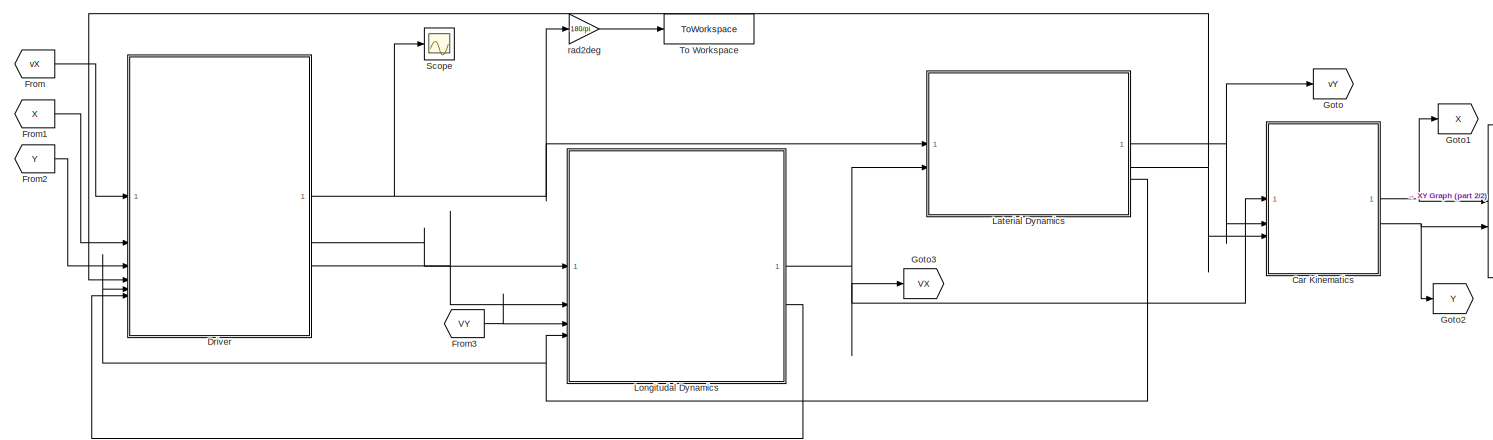
[diagram: root canvas - part 1/2, most of the canvas]
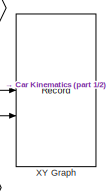
[diagram: root canvas - part 2/2, middle right region]
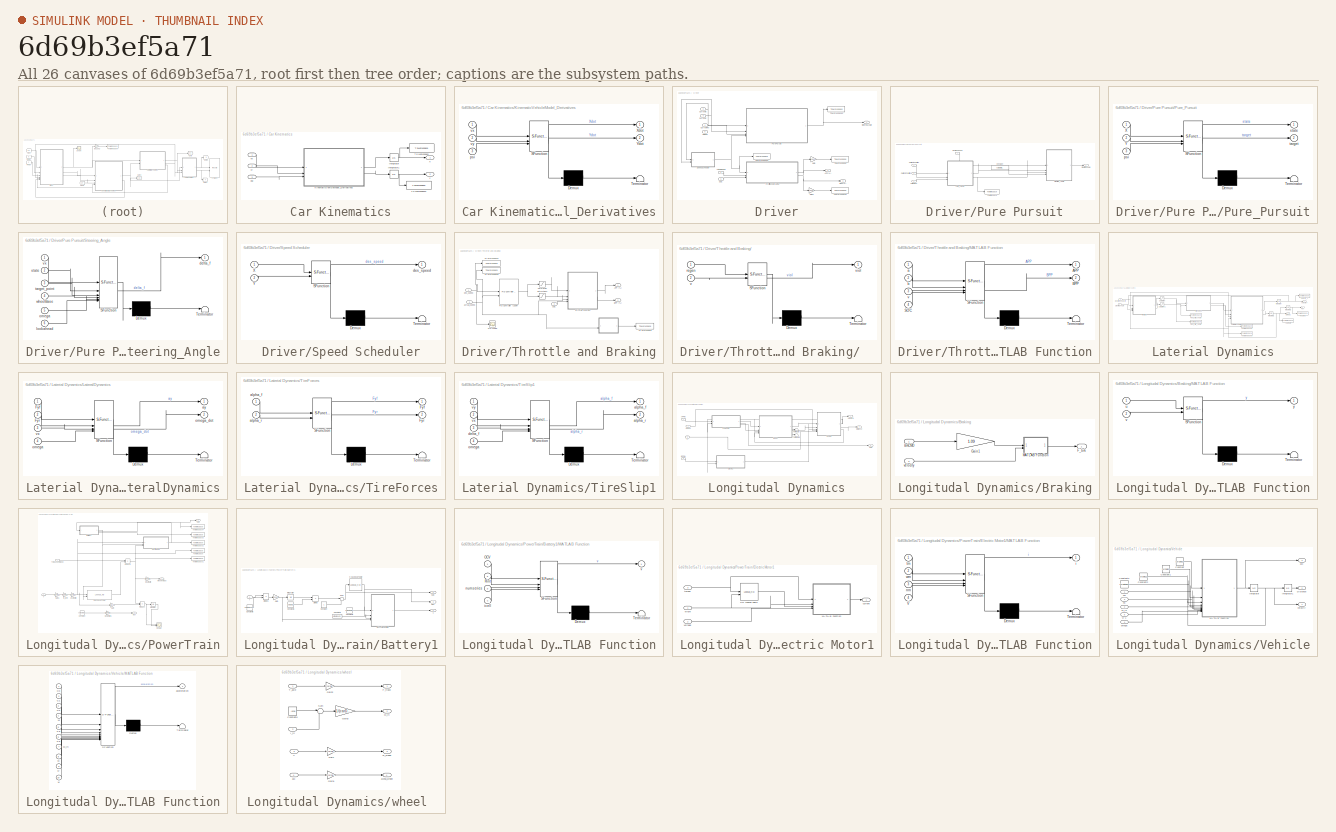
[diagram: thumbnail index - all 26 canvases of the model, root first then tree order]
MODEL slx_6d69b3ef5a71
KIND model
CONFIG AbsTol = auto
CONFIG EnableMultiTasking = off
CONFIG FixedStep = auto
CONFIG MaxStep = auto
CONFIG MinStep = auto
CONFIG RelTol = 1e-3
CONFIG SampleTimeConstraint = Unconstrained
CONFIG SolverName = VariableStepAuto
CONFIG StartTime = 0.0
CONFIG StopTime = 10.0
BLOCK [SubSystem] Car Kinematics
BLOCK [Integrator] Car Kinematics/Integrator
  InitialCondition = carData.init.X0
BLOCK [Integrator] Car Kinematics/Integrator1
  InitialCondition = carData.init.Y0
BLOCK [SubSystem] Car Kinematics/KinematicVehicleModel_Derivatives
  ErrorFcn = Stateflow.Translate.translate
  PermitHierarchicalResolution = ExplicitOnly
  SFBlockType = MATLAB Function
  TreatAsAtomicUnit = on
BLOCK [Demux] Car Kinematics/KinematicVehicleModel_Derivatives/ Demux 
  Outputs = 1
BLOCK [S-Function] Car Kinematics/KinematicVehicleModel_Derivatives/ SFunction 
  EnableBusSupport = on
  FunctionName = sf_sfun
  PortCounts = [3 3]
  SFcnIsStateOwnerBlock = off
  SFunctionDeploymentMode = off
  Tag = Stateflow S-Function 3
BLOCK [Terminator] Car Kinematics/KinematicVehicleModel_Derivatives/ Terminator 
BLOCK [Outport] Car Kinematics/KinematicVehicleModel_Derivatives/Xdot
BLOCK [Outport] Car Kinematics/KinematicVehicleModel_Derivatives/Ydot
  Port = 2
BLOCK [Inport] Car Kinematics/KinematicVehicleModel_Derivatives/psi
  Port = 3
BLOCK [Inport] Car Kinematics/KinematicVehicleModel_Derivatives/vx
BLOCK [Inport] Car Kinematics/KinematicVehicleModel_Derivatives/vy
  Port = 2
BLOCK [ToWorkspace] Car Kinematics/To Workspace
  FixptAsFi = on
  MaxDataPoints = inf
  SampleTime = -1
  SaveFormat = Timeseries
  VariableName = X
BLOCK [ToWorkspace] Car Kinematics/To Workspace1
  FixptAsFi = on
  MaxDataPoints = inf
  SampleTime = -1
  SaveFormat = Timeseries
  VariableName = Y
BLOCK [Outport] Car Kinematics/X
BLOCK [Outport] Car Kinematics/Y
  Port = 2
BLOCK [Inport] Car Kinematics/psi
  Port = 3
BLOCK [Inport] Car Kinematics/vx
BLOCK [Inport] Car Kinematics/vy
  Port = 2
BLOCK [SubSystem] Driver
BLOCK [Outport] Driver/APP (%)
  Port = 2
BLOCK [Inport] Driver/Actual Speed
BLOCK [Outport] Driver/BPP (%)
  Port = 3
BLOCK [Inport] Driver/Current Psi
  Port = 4
BLOCK [Inport] Driver/Current X
  Port = 2
BLOCK [Inport] Driver/Current Y
  Port = 3
BLOCK [Gain] Driver/Gain
  Gain = 1/100
BLOCK [Gain] Driver/Gain1
  Gain = 1/100
BLOCK [Inport] Driver/Omega
  Port = 5
BLOCK [SubSystem] Driver/Pure Pursuit
BLOCK [Constant] Driver/Pure Pursuit/Constant
  Value = carData.lf + carData.lr
BLOCK [Inport] Driver/Pure Pursuit/Current PSI
  Port = 3
BLOCK [Inport] Driver/Pure Pursuit/Current X Position
BLOCK [Inport] Driver/Pure Pursuit/Current Y Position
  Port = 2
BLOCK [Inport] Driver/Pure Pursuit/Desired Speed
  Port = 4
BLOCK [SubSystem] Driver/Pure Pursuit/Pure_Pursuit
  ErrorFcn = Stateflow.Translate.translate
  PermitHierarchicalResolution = ExplicitOnly
  SFBlockType = MATLAB Function
  TreatAsAtomicUnit = on
BLOCK [Demux] Driver/Pure Pursuit/Pure_Pursuit/ Demux 
  Outputs = 1
BLOCK [S-Function] Driver/Pure Pursuit/Pure_Pursuit/ SFunction 
  EnableBusSupport = on
  FunctionName = sf_sfun
  PortCounts = [3 3]
  SFcnIsStateOwnerBlock = off
  SFunctionDeploymentMode = off
  Tag = Stateflow S-Function 10
BLOCK [Terminator] Driver/Pure Pursuit/Pure_Pursuit/ Terminator 
BLOCK [Inport] Driver/Pure Pursuit/Pure_Pursuit/X
BLOCK [Inport] Driver/Pure Pursuit/Pure_Pursuit/Y
  Port = 2
BLOCK [Inport] Driver/Pure Pursuit/Pure_Pursuit/psi
  Port = 3
BLOCK [Outport] Driver/Pure Pursuit/Pure_Pursuit/state
BLOCK [Outport] Driver/Pure Pursuit/Pure_Pursuit/target
  Port = 2
BLOCK [Outport] Driver/Pure Pursuit/Steering Angle
BLOCK [SubSystem] Driver/Pure Pursuit/Steering_Angle
  ErrorFcn = Stateflow.Translate.translate
  PermitHierarchicalResolution = ExplicitOnly
  SFBlockType = MATLAB Function
  TreatAsAtomicUnit = on
BLOCK [Demux] Driver/Pure Pursuit/Steering_Angle/ Demux 
  Outputs = 1
BLOCK [S-Function] Driver/Pure Pursuit/Steering_Angle/ SFunction 
  EnableBusSupport = on
  FunctionName = sf_sfun
  PortCounts = [6 2]
  SFcnIsStateOwnerBlock = off
  SFunctionDeploymentMode = off
  Tag = Stateflow S-Function 11
BLOCK [Terminator] Driver/Pure Pursuit/Steering_Angle/ Terminator 
BLOCK [Outport] Driver/Pure Pursuit/Steering_Angle/delta_f
BLOCK [Inport] Driver/Pure Pursuit/Steering_Angle/lookahead
  Port = 6
BLOCK [Inport] Driver/Pure Pursuit/Steering_Angle/omega
  Port = 5
BLOCK [Inport] Driver/Pure Pursuit/Steering_Angle/state
  Port = 2
BLOCK [Inport] Driver/Pure Pursuit/Steering_Angle/target_point
  Port = 3
BLOCK [Inport] Driver/Pure Pursuit/Steering_Angle/vx
BLOCK [Inport] Driver/Pure Pursuit/Steering_Angle/wheelBase
  Port = 4
BLOCK [ToWorkspace] Driver/Pure Pursuit/To Workspace
  FixptAsFi = on
  MaxDataPoints = inf
  SampleTime = -1
  SaveFormat = Timeseries
  VariableName = ld_pt
BLOCK [Inport] Driver/SOC
  Port = 6
BLOCK [SubSystem] Driver/Speed Scheduler
  ErrorFcn = Stateflow.Translate.translate
  PermitHierarchicalResolution = ExplicitOnly
  SFBlockType = MATLAB Function
  TreatAsAtomicUnit = on
BLOCK [Demux] Driver/Speed Scheduler/ Demux 
  Outputs = 1
BLOCK [S-Function] Driver/Speed Scheduler/ SFunction 
  EnableBusSupport = on
  FunctionName = sf_sfun
  PortCounts = [2 2]
  SFcnIsStateOwnerBlock = off
  SFunctionDeploymentMode = off
  Tag = Stateflow S-Function 9
BLOCK [Terminator] Driver/Speed Scheduler/ Terminator 
BLOCK [Inport] Driver/Speed Scheduler/X
BLOCK [Inport] Driver/Speed Scheduler/Y
  Port = 2
BLOCK [Outport] Driver/Speed Scheduler/des_speed
BLOCK [Outport] Driver/Steering Angle
BLOCK [SubSystem] Driver/Throttle and Braking
BLOCK [SubSystem] Driver/Throttle and Braking/  
  ErrorFcn = Stateflow.Translate.translate
  PermitHierarchicalResolution = ExplicitOnly
  SFBlockType = MATLAB Function
  TreatAsAtomicUnit = on
BLOCK [Demux] Driver/Throttle and Braking/  / Demux 
  Outputs = 1
BLOCK [S-Function] Driver/Throttle and Braking/  / SFunction 
  EnableBusSupport = on
  FunctionName = sf_sfun
  PortCounts = [2 2]
  SFcnIsStateOwnerBlock = off
  SFunctionDeploymentMode = off
  Tag = Stateflow S-Function 7
BLOCK [Terminator] Driver/Throttle and Braking/  / Terminator 
BLOCK [Inport] Driver/Throttle and Braking/  /regen
BLOCK [Inport] Driver/Throttle and Braking/  /v
  Port = 2
BLOCK [Outport] Driver/Throttle and Braking/  /viol
BLOCK [Outport] Driver/Throttle and Braking/APP (%)
BLOCK [Outport] Driver/Throttle and Braking/BPP (%)
  Port = 2
BLOCK [SubSystem] Driver/Throttle and Braking/MATLAB Function
  ErrorFcn = Stateflow.Translate.translate
  PermitHierarchicalResolution = ExplicitOnly
  SFBlockType = MATLAB Function
  TreatAsAtomicUnit = on
BLOCK [Demux] Driver/Throttle and Braking/MATLAB Function/ Demux 
  Outputs = 1
BLOCK [S-Function] Driver/Throttle and Braking/MATLAB Function/ SFunction 
  EnableBusSupport = on
  FunctionName = sf_sfun
  PortCounts = [4 3]
  SFcnIsStateOwnerBlock = off
  SFunctionDeploymentMode = off
  Tag = Stateflow S-Function 12
BLOCK [Terminator] Driver/Throttle and Braking/MATLAB Function/ Terminator 
BLOCK [Outport] Driver/Throttle and Braking/MATLAB Function/APP
BLOCK [Outport] Driver/Throttle and Braking/MATLAB Function/BPP
  Port = 2
BLOCK [Inport] Driver/Throttle and Braking/MATLAB Function/SOC
  Port = 4
BLOCK [Inport] Driver/Throttle and Braking/MATLAB Function/a
BLOCK [Inport] Driver/Throttle and Braking/MATLAB Function/b
  Port = 2
BLOCK [Inport] Driver/Throttle and Braking/MATLAB Function/v
  Port = 3
BLOCK [Reference] Driver/Throttle and Braking/PID Controller (2DOF)  REF=slpidlib/PID Controller (2DOF)
  LibrarySourceBlock = simulink/Continuous/PID Controller (2DOF)
  SourceBlock = slpidlib/PID Controller (2DOF)
  SourceType = PID 2dof
BLOCK [Scope] Driver/Throttle and Braking/PID Tuning
  Floating = off
  NumInputPorts = 1
  ScopeSpecificationString = Simulink.scopes.TimeScopeBlockCfg('CurrentConfiguration', extmgr.ConfigurationSet(extmgr.Configuration('Core','General UI',true),extmgr.Configuration('Core','Source UI',true),extmgr.Configuration('Sources','WiredSimulink',true,'DataLoggingVariableName','ScopeData1'),extmgr.Configuration('Visuals','Time Domain',true,'SerializedDisplays',{struct('MinYLimReal','-10','MaxYLimReal','10','YLabelReal',''...<+880ch>
BLOCK [Inport] Driver/Throttle and Braking/SOC
  Port = 3
BLOCK [Saturate] Driver/Throttle and Braking/Saturation
  LowerLimit = 0
  UpperLimit = 1
BLOCK [Saturate] Driver/Throttle and Braking/Saturation1
  LowerLimit = -1
  UpperLimit = 0
BLOCK [ToWorkspace] Driver/Throttle and Braking/To Workspace
  FixptAsFi = on
  MaxDataPoints = inf
  SampleTime = -1
  SaveFormat = Timeseries
  VariableName = brake_torque
BLOCK [ToWorkspace] Driver/Throttle and Braking/To Workspace1
  FixptAsFi = on
  MaxDataPoints = inf
  SampleTime = -1
  SaveFormat = Timeseries
  VariableName = Des_speed
BLOCK [ToWorkspace] Driver/Throttle and Braking/To Workspace2
  FixptAsFi = on
  MaxDataPoints = inf
  SampleTime = -1
  SaveFormat = Timeseries
  VariableName = veh_speed
BLOCK [Inport] Driver/Throttle and Braking/actual_speed
  Port = 2
BLOCK [Inport] Driver/Throttle and Braking/des_speed
BLOCK [ToWorkspace] Driver/To Workspace
  FixptAsFi = on
  MaxDataPoints = inf
  SampleTime = -1
  SaveFormat = Timeseries
  VariableName = alpha
BLOCK [ToWorkspace] Driver/To Workspace1
  FixptAsFi = on
  MaxDataPoints = inf
  SampleTime = -1
  SaveFormat = Timeseries
  VariableName = beta
BLOCK [ToWorkspace] Driver/To Workspace2
  FixptAsFi = on
  MaxDataPoints = inf
  SampleTime = -1
  SaveFormat = Timeseries
  VariableName = Des_Speed
BLOCK [ToWorkspace] Driver/To Workspace3
  FixptAsFi = on
  MaxDataPoints = inf
  SampleTime = -1
  SaveFormat = Timeseries
  VariableName = delta
BLOCK [From] From
  GotoTag = vX
BLOCK [From] From1
  GotoTag = X
BLOCK [From] From2
  GotoTag = Y
BLOCK [From] From3
  GotoTag = VY
BLOCK [Goto] Goto
  GotoTag = vY
BLOCK [Goto] Goto1
  GotoTag = X
BLOCK [Goto] Goto2
  GotoTag = Y
BLOCK [Goto] Goto3
  GotoTag = VX
BLOCK [SubSystem] Laterial Dynamics
BLOCK [Inport] Laterial Dynamics/Desired x Velocity
  Port = 2
BLOCK [ToWorkspace] Laterial Dynamics/Front_Slip_Angle
  FixptAsFi = on
  MaxDataPoints = inf
  SampleTime = -1
  SaveFormat = Timeseries
  VariableName = alpha_f
BLOCK [ToWorkspace] Laterial Dynamics/Heading
  FixptAsFi = on
  MaxDataPoints = inf
  SampleTime = -1
  SaveFormat = Timeseries
  VariableName = psi
BLOCK [Integrator] Laterial Dynamics/Integrator
  InitialCondition = carData.init.vy0
BLOCK [Integrator] Laterial Dynamics/Integrator1
  InitialCondition = carData.init.omega0
BLOCK [Integrator] Laterial Dynamics/Integrator2
  InitialCondition = carData.init.psi0
  WrappedStateLowerValue = 0
  WrappedStateUpperValue = 2*pi
BLOCK [SubSystem] Laterial Dynamics/LateralDynamics
  ErrorFcn = Stateflow.Translate.translate
  PermitHierarchicalResolution = ExplicitOnly
  SFBlockType = MATLAB Function
  TreatAsAtomicUnit = on
BLOCK [Demux] Laterial Dynamics/LateralDynamics/ Demux 
  Outputs = 1
BLOCK [S-Function] Laterial Dynamics/LateralDynamics/ SFunction 
  EnableBusSupport = on
  FunctionName = sf_sfun
  PortCounts = [4 3]
  SFcnIsStateOwnerBlock = off
  SFunctionDeploymentMode = off
  Tag = Stateflow S-Function 1
BLOCK [Terminator] Laterial Dynamics/LateralDynamics/ Terminator 
BLOCK [Inport] Laterial Dynamics/LateralDynamics/Fyf
BLOCK [Inport] Laterial Dynamics/LateralDynamics/Fyr
  Port = 2
BLOCK [Outport] Laterial Dynamics/LateralDynamics/ay
BLOCK [Inport] Laterial Dynamics/LateralDynamics/omega
  Port = 4
BLOCK [Outport] Laterial Dynamics/LateralDynamics/omega_dot
  Port = 2
BLOCK [Inport] Laterial Dynamics/LateralDynamics/vx
  Port = 3
BLOCK [Outport] Laterial Dynamics/Omega
  Port = 3
BLOCK [Outport] Laterial Dynamics/Psi
  Port = 2
BLOCK [ToWorkspace] Laterial Dynamics/Rear_Slip_Angle
  FixptAsFi = on
  MaxDataPoints = inf
  SampleTime = -1
  SaveFormat = Timeseries
  VariableName = alpha_r
BLOCK [Saturate] Laterial Dynamics/Saturation
  LowerLimit = -carData.maxAlpha
  UpperLimit = carData.maxAlpha
BLOCK [Saturate] Laterial Dynamics/Saturation1
  LowerLimit = -carData.maxAlpha
  UpperLimit = carData.maxAlpha
BLOCK [Inport] Laterial Dynamics/Steering Angle
BLOCK [SubSystem] Laterial Dynamics/TireForces
  ErrorFcn = Stateflow.Translate.translate
  PermitHierarchicalResolution = ExplicitOnly
  SFBlockType = MATLAB Function
  TreatAsAtomicUnit = on
BLOCK [Demux] Laterial Dynamics/TireForces/ Demux 
  Outputs = 1
BLOCK [S-Function] Laterial Dynamics/TireForces/ SFunction 
  EnableBusSupport = on
  FunctionName = sf_sfun
  PortCounts = [2 3]
  SFcnIsStateOwnerBlock = off
  SFunctionDeploymentMode = off
  Tag = Stateflow S-Function 6
BLOCK [Terminator] Laterial Dynamics/TireForces/ Terminator 
BLOCK [Outport] Laterial Dynamics/TireForces/Fyf
BLOCK [Outport] Laterial Dynamics/TireForces/Fyr
  Port = 2
BLOCK [Inport] Laterial Dynamics/TireForces/alpha_f
BLOCK [Inport] Laterial Dynamics/TireForces/alpha_r
  Port = 2
BLOCK [SubSystem] Laterial Dynamics/TireSlip1
  ErrorFcn = Stateflow.Translate.translate
  PermitHierarchicalResolution = ExplicitOnly
  SFBlockType = MATLAB Function
  TreatAsAtomicUnit = on
BLOCK [Demux] Laterial Dynamics/TireSlip1/ Demux 
  Outputs = 1
BLOCK [S-Function] Laterial Dynamics/TireSlip1/ SFunction 
  EnableBusSupport = on
  FunctionName = sf_sfun
  PortCounts = [4 3]
  SFcnIsStateOwnerBlock = off
  SFunctionDeploymentMode = off
  Tag = Stateflow S-Function 14
BLOCK [Terminator] Laterial Dynamics/TireSlip1/ Terminator 
BLOCK [Outport] Laterial Dynamics/TireSlip1/alpha_f
BLOCK [Outport] Laterial Dynamics/TireSlip1/alpha_r
  Port = 2
BLOCK [Inport] Laterial Dynamics/TireSlip1/delta_f
  Port = 3
BLOCK [Inport] Laterial Dynamics/TireSlip1/omega
  Port = 4
BLOCK [Inport] Laterial Dynamics/TireSlip1/vx
  Port = 2
BLOCK [Inport] Laterial Dynamics/TireSlip1/vy
BLOCK [ToWorkspace] Laterial Dynamics/To Workspace5
  FixptAsFi = on
  MaxDataPoints = inf
  SampleTime = -1
  SaveFormat = Timeseries
  VariableName = Fyf
BLOCK [ToWorkspace] Laterial Dynamics/To Workspace6
  FixptAsFi = on
  MaxDataPoints = inf
  SampleTime = -1
  SaveFormat = Timeseries
  VariableName = Fyr
BLOCK [Outport] Laterial Dynamics/Velocity Y
BLOCK [ToWorkspace] Laterial Dynamics/Velocity_Y
  FixptAsFi = on
  MaxDataPoints = inf
  SampleTime = -1
  SaveFormat = Timeseries
  VariableName = vy
BLOCK [ToWorkspace] Laterial Dynamics/Yaw Rate
  FixptAsFi = on
  MaxDataPoints = inf
  SampleTime = -1
  SaveFormat = Timeseries
  VariableName = omega
BLOCK [SubSystem] Longitudal Dynamics
BLOCK [Inport] Longitudal Dynamics/APP (%)
  NameLocation = left
BLOCK [Inport] Longitudal Dynamics/BPP (%)
  Port = 2
BLOCK [SubSystem] Longitudal Dynamics/Braking
BLOCK [Inport] Longitudal Dynamics/Braking/BrkCMD 
BLOCK [Outport] Longitudal Dynamics/Braking/F_brk 
  VectorParamsAs1DForOutWhenUnconnected = off
BLOCK [Gain] Longitudal Dynamics/Braking/Gain1
  Gain = 1.09
BLOCK [SubSystem] Longitudal Dynamics/Braking/MATLAB Function
  ErrorFcn = Stateflow.Translate.translate
  PermitHierarchicalResolution = ExplicitOnly
  SFBlockType = MATLAB Function
  TreatAsAtomicUnit = on
BLOCK [Demux] Longitudal Dynamics/Braking/MATLAB Function/ Demux 
  Outputs = 1
BLOCK [S-Function] Longitudal Dynamics/Braking/MATLAB Function/ SFunction 
  EnableBusSupport = on
  FunctionName = sf_sfun
  PortCounts = [2 2]
  SFcnIsStateOwnerBlock = off
  SFunctionDeploymentMode = off
  Tag = Stateflow S-Function 4
BLOCK [Terminator] Longitudal Dynamics/Braking/MATLAB Function/ Terminator 
BLOCK [Inport] Longitudal Dynamics/Braking/MATLAB Function/u
BLOCK [Inport] Longitudal Dynamics/Braking/MATLAB Function/v
  Port = 2
BLOCK [Outport] Longitudal Dynamics/Braking/MATLAB Function/y
BLOCK [Inport] Longitudal Dynamics/Braking/velocity 
  Port = 2
BLOCK [Outport] Longitudal Dynamics/Distance 
  Port = 3
BLOCK [Inport] Longitudal Dynamics/Omega
  Port = 4
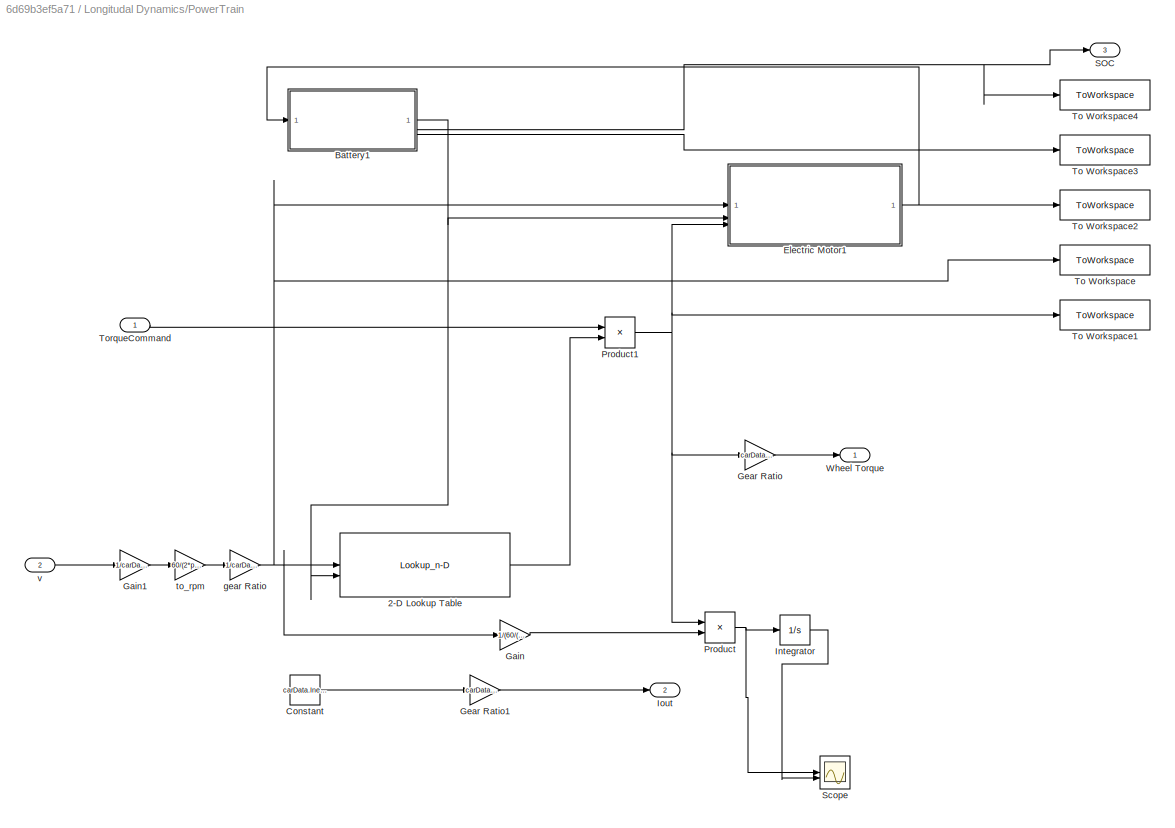
BLOCK [SubSystem] Longitudal Dynamics/PowerTrain
BLOCK [Lookup_n-D] Longitudal Dynamics/PowerTrain/2-D Lookup Table
  BreakpointsForDimension1 = motorData.vbus
  BreakpointsForDimension2 = motorData.rpm
  InputPortMap = u0,u1
  InternalRulePriority = Speed
  RndMeth = Simplest
  Table = motorData.maxtorque
BLOCK [SubSystem] Longitudal Dynamics/PowerTrain/Battery1
BLOCK [Constant] Longitudal Dynamics/PowerTrain/Battery1/Constant
BLOCK [Constant] Longitudal Dynamics/PowerTrain/Battery1/Constant1
  Value = batData.C
BLOCK [Constant] Longitudal Dynamics/PowerTrain/Battery1/Constant3
  Value = batData.Rint
BLOCK [Constant] Longitudal Dynamics/PowerTrain/Battery1/Constant4
  Value = batData.numSeries
BLOCK [Constant] Longitudal Dynamics/PowerTrain/Battery1/Constant5
  Value = batData.numParallel
BLOCK [Product] Longitudal Dynamics/PowerTrain/Battery1/Divide
  Inputs = */
BLOCK [Product] Longitudal Dynamics/PowerTrain/Battery1/Divide1
  Inputs = */
BLOCK [Gain] Longitudal Dynamics/PowerTrain/Battery1/Gain
  Gain = 3600
BLOCK [Integrator] Longitudal Dynamics/PowerTrain/Battery1/Integrator
BLOCK [SubSystem] Longitudal Dynamics/PowerTrain/Battery1/MATLAB Function
  ErrorFcn = Stateflow.Translate.translate
  PermitHierarchicalResolution = ExplicitOnly
  SFBlockType = MATLAB Function
  TreatAsAtomicUnit = on
BLOCK [Demux] Longitudal Dynamics/PowerTrain/Battery1/MATLAB Function/ Demux 
  Outputs = 1
BLOCK [S-Function] Longitudal Dynamics/PowerTrain/Battery1/MATLAB Function/ SFunction 
  EnableBusSupport = on
  FunctionName = sf_sfun
  PortCounts = [4 2]
  SFcnIsStateOwnerBlock = off
  SFunctionDeploymentMode = off
  Tag = Stateflow S-Function 5
BLOCK [Terminator] Longitudal Dynamics/PowerTrain/Battery1/MATLAB Function/ Terminator 
BLOCK [Inport] Longitudal Dynamics/PowerTrain/Battery1/MATLAB Function/OCV
BLOCK [Inport] Longitudal Dynamics/PowerTrain/Battery1/MATLAB Function/Rint
  Port = 2
BLOCK [Inport] Longitudal Dynamics/PowerTrain/Battery1/MATLAB Function/icell
  Port = 4
BLOCK [Inport] Longitudal Dynamics/PowerTrain/Battery1/MATLAB Function/numseries
  Port = 3
BLOCK [Outport] Longitudal Dynamics/PowerTrain/Battery1/MATLAB Function/v
BLOCK [Outport] Longitudal Dynamics/PowerTrain/Battery1/OCV
  Port = 3
BLOCK [Outport] Longitudal Dynamics/PowerTrain/Battery1/SOC
  Port = 2
BLOCK [Sum] Longitudal Dynamics/PowerTrain/Battery1/Sum
  Inputs = |+-
BLOCK [Inport] Longitudal Dynamics/PowerTrain/Battery1/i
BLOCK [Lookup_n-D] Longitudal Dynamics/PowerTrain/Battery1/n-D Lookup Table
  BreakpointsForDimension1 = batData.SOC
  BreakpointsForDimension3 = [5, 7]
  InputPortMap = u0
  InternalRulePriority = Speed
  NumberOfTableDimensions = 1
  RndMeth = Simplest
  Table = batData.OCV
BLOCK [Outport] Longitudal Dynamics/PowerTrain/Battery1/v
BLOCK [Constant] Longitudal Dynamics/PowerTrain/Constant
  Value = carData.Inertia
BLOCK [SubSystem] Longitudal Dynamics/PowerTrain/Electric Motor1
BLOCK [SubSystem] Longitudal Dynamics/PowerTrain/Electric Motor1/MATLAB Function
  ErrorFcn = Stateflow.Translate.translate
  PermitHierarchicalResolution = ExplicitOnly
  SFBlockType = MATLAB Function
  TreatAsAtomicUnit = on
BLOCK [Demux] Longitudal Dynamics/PowerTrain/Electric Motor1/MATLAB Function/ Demux 
  Outputs = 1
BLOCK [S-Function] Longitudal Dynamics/PowerTrain/Electric Motor1/MATLAB Function/ SFunction 
  EnableBusSupport = on
  FunctionName = sf_sfun
  PortCounts = [4 2]
  SFcnIsStateOwnerBlock = off
  SFunctionDeploymentMode = off
  Tag = Stateflow S-Function 2
BLOCK [Terminator] Longitudal Dynamics/PowerTrain/Electric Motor1/MATLAB Function/ Terminator 
BLOCK [Inport] Longitudal Dynamics/PowerTrain/Electric Motor1/MATLAB Function/V
  Port = 4
BLOCK [Outport] Longitudal Dynamics/PowerTrain/Electric Motor1/MATLAB Function/i
BLOCK [Inport] Longitudal Dynamics/PowerTrain/Electric Motor1/MATLAB Function/nm
  Port = 3
BLOCK [Inport] Longitudal Dynamics/PowerTrain/Electric Motor1/MATLAB Function/tm
BLOCK [Inport] Longitudal Dynamics/PowerTrain/Electric Motor1/MATLAB Function/wm
  Port = 2
BLOCK [Outport] Longitudal Dynamics/PowerTrain/Electric Motor1/current
BLOCK [Lookup_n-D] Longitudal Dynamics/PowerTrain/Electric Motor1/n-D Lookup Table
  BreakpointsForDimension1 = motorData.eta_torque
  BreakpointsForDimension2 = motorData.eta_speed
  BreakpointsForDimension3 = [5, 7]
  InputPortMap = u0,u1
  InternalRulePriority = Speed
  RndMeth = Simplest
  Table = motorData.eta_val
BLOCK [Inport] Longitudal Dynamics/PowerTrain/Electric Motor1/torque
  Port = 3
BLOCK [Inport] Longitudal Dynamics/PowerTrain/Electric Motor1/voltage
  Port = 2
BLOCK [Inport] Longitudal Dynamics/PowerTrain/Electric Motor1/wrpm
BLOCK [Gain] Longitudal Dynamics/PowerTrain/Gain
  Gain = 1/(60/(2*pi()))
BLOCK [Gain] Longitudal Dynamics/PowerTrain/Gain1
  Gain = 1/carData.radius
BLOCK [Gain] Longitudal Dynamics/PowerTrain/Gear Ratio
  Gain = carData.gearRatio1
BLOCK [Gain] Longitudal Dynamics/PowerTrain/Gear Ratio1
  Gain = carData.gearRatio2
BLOCK [Integrator] Longitudal Dynamics/PowerTrain/Integrator
BLOCK [Outport] Longitudal Dynamics/PowerTrain/Iout
  Port = 2
BLOCK [Product] Longitudal Dynamics/PowerTrain/Product
BLOCK [Product] Longitudal Dynamics/PowerTrain/Product1
BLOCK [Outport] Longitudal Dynamics/PowerTrain/SOC
  Port = 3
BLOCK [Scope] Longitudal Dynamics/PowerTrain/Scope
  Floating = off
  NumInputPorts = 2
  ScopeSpecificationString = Simulink.scopes.TimeScopeBlockCfg('CurrentConfiguration', extmgr.ConfigurationSet(extmgr.Configuration('Core','General UI',true),extmgr.Configuration('Core','Source UI',true),extmgr.Configuration('Sources','WiredSimulink',true,'DataLoggingVariableName','ScopeData1'),extmgr.Configuration('Visuals','Time Domain',true,'SerializedDisplays',{struct('MinYLimReal','-343061.52991','MaxYLimReal','3087553.7...<+1446ch>
BLOCK [ToWorkspace] Longitudal Dynamics/PowerTrain/To Workspace
  FixptAsFi = on
  MaxDataPoints = inf
  SampleTime = -1
  SaveFormat = Structure With Time
  VariableName = motor_speed
BLOCK [ToWorkspace] Longitudal Dynamics/PowerTrain/To Workspace1
  FixptAsFi = on
  MaxDataPoints = inf
  SampleTime = -1
  SaveFormat = Structure With Time
  VariableName = motor_troque
BLOCK [ToWorkspace] Longitudal Dynamics/PowerTrain/To Workspace2
  FixptAsFi = on
  MaxDataPoints = inf
  SampleTime = -1
  SaveFormat = Structure With Time
  VariableName = I_bat
BLOCK [ToWorkspace] Longitudal Dynamics/PowerTrain/To Workspace3
  FixptAsFi = on
  MaxDataPoints = inf
  SampleTime = -1
  SaveFormat = Structure With Time
  VariableName = OCV
BLOCK [ToWorkspace] Longitudal Dynamics/PowerTrain/To Workspace4
  FixptAsFi = on
  MaxDataPoints = inf
  SampleTime = -1
  SaveFormat = Structure With Time
  VariableName = SOC
BLOCK [Inport] Longitudal Dynamics/PowerTrain/TorqueCommand
BLOCK [Outport] Longitudal Dynamics/PowerTrain/Wheel Torque
BLOCK [Gain] Longitudal Dynamics/PowerTrain/gear Ratio
  Gain = 1/carData.gearRatio1
BLOCK [Gain] Longitudal Dynamics/PowerTrain/to_rpm
  Gain = 60/(2*pi)
BLOCK [Inport] Longitudal Dynamics/PowerTrain/v
  Port = 2
BLOCK [Outport] Longitudal Dynamics/SOC
  Port = 2
BLOCK [Terminator] Longitudal Dynamics/Terminator
BLOCK [Terminator] Longitudal Dynamics/Terminator1
BLOCK [SubSystem] Longitudal Dynamics/Vehicle
BLOCK [Constant] Longitudal Dynamics/Vehicle/Constant
  Value = carData.C0
BLOCK [Constant] Longitudal Dynamics/Vehicle/Constant1
  Value = carData.C1
BLOCK [Constant] Longitudal Dynamics/Vehicle/Constant2
  Value = carData.C2
BLOCK [Constant] Longitudal Dynamics/Vehicle/Constant3
  Value = carData.Mass
BLOCK [Outport] Longitudal Dynamics/Vehicle/Distance 
  Port = 2
  VectorParamsAs1DForOutWhenUnconnected = off
BLOCK [Inport] Longitudal Dynamics/Vehicle/Fb 
  Port = 3
BLOCK [Inport] Longitudal Dynamics/Vehicle/Fw 
BLOCK [Integrator] Longitudal Dynamics/Vehicle/Integrator
  LimitOutput = on
  LowerSaturationLimit = 0
BLOCK [Integrator] Longitudal Dynamics/Vehicle/Integrator1
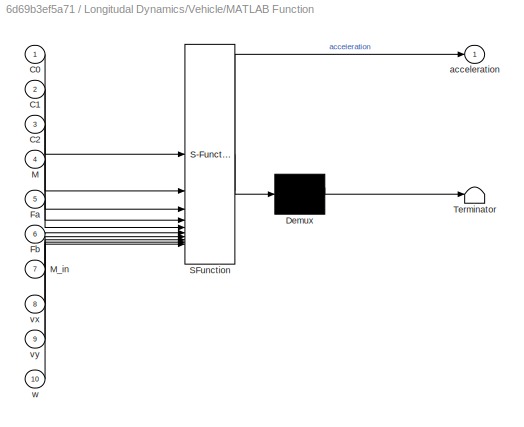
BLOCK [SubSystem] Longitudal Dynamics/Vehicle/MATLAB Function
  ErrorFcn = Stateflow.Translate.translate
  PermitHierarchicalResolution = ExplicitOnly
  SFBlockType = MATLAB Function
  TreatAsAtomicUnit = on
BLOCK [Demux] Longitudal Dynamics/Vehicle/MATLAB Function/ Demux 
  Outputs = 1
BLOCK [S-Function] Longitudal Dynamics/Vehicle/MATLAB Function/ SFunction 
  EnableBusSupport = on
  FunctionName = sf_sfun
  PortCounts = [10 2]
  SFcnIsStateOwnerBlock = off
  SFunctionDeploymentMode = off
  Tag = Stateflow S-Function 8
BLOCK [Terminator] Longitudal Dynamics/Vehicle/MATLAB Function/ Terminator 
BLOCK [Inport] Longitudal Dynamics/Vehicle/MATLAB Function/C0
BLOCK [Inport] Longitudal Dynamics/Vehicle/MATLAB Function/C1
  Port = 2
BLOCK [Inport] Longitudal Dynamics/Vehicle/MATLAB Function/C2
  Port = 3
BLOCK [Inport] Longitudal Dynamics/Vehicle/MATLAB Function/Fa
  Port = 5
BLOCK [Inport] Longitudal Dynamics/Vehicle/MATLAB Function/Fb
  Port = 6
BLOCK [Inport] Longitudal Dynamics/Vehicle/MATLAB Function/M
  Port = 4
BLOCK [Inport] Longitudal Dynamics/Vehicle/MATLAB Function/M_in
  Port = 7
BLOCK [Outport] Longitudal Dynamics/Vehicle/MATLAB Function/acceleration
  VectorParamsAs1DForOutWhenUnconnected = off
BLOCK [Inport] Longitudal Dynamics/Vehicle/MATLAB Function/vx
  Port = 8
BLOCK [Inport] Longitudal Dynamics/Vehicle/MATLAB Function/vy
  Port = 9
BLOCK [Inport] Longitudal Dynamics/Vehicle/MATLAB Function/w
  Port = 10
BLOCK [Inport] Longitudal Dynamics/Vehicle/M_in 
  Port = 2
BLOCK [Outport] Longitudal Dynamics/Vehicle/acc
  Port = 3
BLOCK [Inport] Longitudal Dynamics/Vehicle/omega
  Port = 4
BLOCK [Outport] Longitudal Dynamics/Vehicle/velocity 
  VectorParamsAs1DForOutWhenUnconnected = off
BLOCK [Inport] Longitudal Dynamics/Vehicle/vy 1
  Port = 5
BLOCK [Outport] Longitudal Dynamics/Velocity X
BLOCK [Inport] Longitudal Dynamics/Vy
  Port = 3
BLOCK [SubSystem] Longitudal Dynamics/wheel 
BLOCK [Constant] Longitudal Dynamics/wheel /Constant6
  Value = .4536
BLOCK [Outport] Longitudal Dynamics/wheel /F_track
BLOCK [Gain] Longitudal Dynamics/wheel /Gain
  Gain = 1/carData.radius
BLOCK [Gain] Longitudal Dynamics/wheel /Gain1
  Gain = 1/carData.radius
BLOCK [Gain] Longitudal Dynamics/wheel /Gain2
  Gain = 1/carData.radius
BLOCK [Gain] Longitudal Dynamics/wheel /Gain3
  Gain = 1/(carData.radius*carData.radius)
BLOCK [Inport] Longitudal Dynamics/wheel /I_in
  Port = 2
BLOCK [Outport] Longitudal Dynamics/wheel /M_in
  Port = 2
BLOCK [Sum] Longitudal Dynamics/wheel /Sum
  Inputs = |++
BLOCK [Inport] Longitudal Dynamics/wheel /T_axle
BLOCK [Inport] Longitudal Dynamics/wheel /V
  Port = 3
BLOCK [Inport] Longitudal Dynamics/wheel /acc
  Port = 4
BLOCK [Outport] Longitudal Dynamics/wheel /alpha_wheel
  Port = 4
BLOCK [Outport] Longitudal Dynamics/wheel /w_wheel
  Port = 3
BLOCK [Scope] Scope
  Floating = off
  NumInputPorts = 1
  ScopeSpecificationString = Simulink.scopes.TimeScopeBlockCfg('CurrentConfiguration', extmgr.ConfigurationSet(extmgr.Configuration('Core','General UI',true),extmgr.Configuration('Core','Source UI',true),extmgr.Configuration('Sources','WiredSimulink',true,'DataLoggingVariableName','ScopeData2'),extmgr.Configuration('Visuals','Time Domain',true),extmgr.Configuration('Tools','Plot Navigation',true),extmgr.Configuration('Tools',...<+40ch>
BLOCK [ToWorkspace] To Workspace
  FixptAsFi = on
  MaxDataPoints = inf
  SampleTime = -1
  SaveFormat = Timeseries
  VariableName = simout
BLOCK [Record] XY Graph
  CompatibilityTag = XY
  FileSettingsInternal = {"entries":[{"content":{"excelSettings":{"content":{},"type":"Streamout.ExcelSettings"}},"type":"Streamout.FileSettingStorage","uuid":""}],"packageUris":["http:\/\/schema.mathworks.com\/mf0\/streamout_blocks\/R2020a"],"version":"1.0"}
  Layout = [1 1]
  SignalsInternal = {"entries":[{"content":{"signals":[{"content":{"blockPath":[],"dimensions":[1],"domain":"","lineColor":"#d95319","plots":[ 1 ],"port":1,"signalID":1,"signalName":"Car Kinematics:1"},"type":"RecordBlkView.Signal","uuid":""},{"content":{"blockPath":[],"dimensions":[1],"domain":"","lineColor":"#edb120","plots":[ 1 ],"port":2,"signalID":2,"signalName":"Car Kinematics:2"},"type":"RecordBlkView.Signal",...<+156ch>
  VisualizationBindings = {"xyplotplugin":{"info":[{"series":[{"bindingParametersList":[{"parameter":"X-Axis","signalID":1,"signalName":"Car Kinematics:1"},{"parameter":"Y-Axis","signalID":2,"signalName":"Car Kinematics:2"}],"seriesID":0}],"subplotID":1}]}}
  st = -1
BLOCK [Gain] rad2deg
  Gain = 180/pi
NET Car Kinematics/Integrator1:1 -> Car Kinematics/To Workspace1:1, Car Kinematics/Y:1
NET Car Kinematics/Integrator:1 -> Car Kinematics/To Workspace:1, Car Kinematics/X:1
LINE Car Kinematics/KinematicVehicleModel_Derivatives:1 -> Car Kinematics/Integrator:1
LINE Car Kinematics/KinematicVehicleModel_Derivatives:2 -> Car Kinematics/Integrator1:1
LINE Car Kinematics/psi:1 -> Car Kinematics/KinematicVehicleModel_Derivatives:3
LINE Car Kinematics/vx:1 -> Car Kinematics/KinematicVehicleModel_Derivatives:1
LINE Car Kinematics/vy:1 -> Car Kinematics/KinematicVehicleModel_Derivatives:2
NET Car Kinematics:1 -> Goto1:1, XY Graph:1
NET Car Kinematics:2 -> Goto2:1, XY Graph:2
LINE Driver/Actual Speed:1 -> Driver/Throttle and Braking:2
LINE Driver/Current Psi:1 -> Driver/Pure Pursuit:3
NET Driver/Current X:1 -> Driver/Pure Pursuit:1, Driver/Speed Scheduler:1
NET Driver/Current Y:1 -> Driver/Pure Pursuit:2, Driver/Speed Scheduler:2
LINE Driver/Gain1:1 -> Driver/To Workspace1:1
LINE Driver/Gain:1 -> Driver/To Workspace:1
LINE Driver/Pure Pursuit/Constant:1 -> Driver/Pure Pursuit/Steering_Angle:4
LINE Driver/Pure Pursuit/Current PSI:1 -> Driver/Pure Pursuit/Pure_Pursuit:3
LINE Driver/Pure Pursuit/Current X Position:1 -> Driver/Pure Pursuit/Pure_Pursuit:1
LINE Driver/Pure Pursuit/Current Y Position:1 -> Driver/Pure Pursuit/Pure_Pursuit:2
LINE Driver/Pure Pursuit/Desired Speed:1 -> Driver/Pure Pursuit/Steering_Angle:1
LINE Driver/Pure Pursuit/Pure_Pursuit:1 -> Driver/Pure Pursuit/Steering_Angle:2
NET Driver/Pure Pursuit/Pure_Pursuit:2 -> Driver/Pure Pursuit/Steering_Angle:3, Driver/Pure Pursuit/To Workspace:1
LINE Driver/Pure Pursuit/Steering_Angle:1 -> Driver/Pure Pursuit/Steering Angle:1
NET Driver/Pure Pursuit:1 -> Driver/Steering Angle:1, Driver/To Workspace3:1
LINE Driver/SOC:1 -> Driver/Throttle and Braking:3
NET Driver/Speed Scheduler:1 -> Driver/Pure Pursuit:4, Driver/Throttle and Braking:1, Driver/To Workspace2:1
LINE Driver/Throttle and Braking/  :1 -> Driver/Throttle and Braking/To Workspace:1
LINE Driver/Throttle and Braking/MATLAB Function:1 -> Driver/Throttle and Braking/APP (%):1
LINE Driver/Throttle and Braking/MATLAB Function:2 -> Driver/Throttle and Braking/BPP (%):1
NET Driver/Throttle and Braking/PID Controller (2DOF):1 -> Driver/Throttle and Braking/Saturation1:1, Driver/Throttle and Braking/Saturation:1
LINE Driver/Throttle and Braking/SOC:1 -> Driver/Throttle and Braking/MATLAB Function:4
LINE Driver/Throttle and Braking/Saturation1:1 -> Driver/Throttle and Braking/MATLAB Function:2
LINE Driver/Throttle and Braking/Saturation:1 -> Driver/Throttle and Braking/MATLAB Function:1
NET Driver/Throttle and Braking/actual_speed:1 -> Driver/Throttle and Braking/  :2, Driver/Throttle and Braking/MATLAB Function:3, Driver/Throttle and Braking/PID Controller (2DOF):2, Driver/Throttle and Braking/To Workspace2:1
NET Driver/Throttle and Braking/des_speed:1 -> Driver/Throttle and Braking/PID Controller (2DOF):1, Driver/Throttle and Braking/PID Tuning:1, Driver/Throttle and Braking/To Workspace1:1
NET Driver/Throttle and Braking:1 -> Driver/APP (%):1, Driver/Gain:1
NET Driver/Throttle and Braking:2 -> Driver/BPP (%):1, Driver/Gain1:1
NET Driver:1 -> Laterial Dynamics:1, Scope:1, rad2deg:1
LINE Driver:2 -> Longitudal Dynamics:1
LINE Driver:3 -> Longitudal Dynamics:2
LINE From1:1 -> Driver:2
LINE From2:1 -> Driver:3
LINE From3:1 -> Longitudal Dynamics:3
LINE From:1 -> Driver:1
NET Laterial Dynamics/Desired x Velocity:1 -> Laterial Dynamics/LateralDynamics:3, Laterial Dynamics/TireSlip1:2
NET Laterial Dynamics/Integrator1:1 -> Laterial Dynamics/Integrator2:1, Laterial Dynamics/LateralDynamics:4, Laterial Dynamics/Omega:1, Laterial Dynamics/TireSlip1:4, Laterial Dynamics/Yaw Rate:1
NET Laterial Dynamics/Integrator2:1 -> Laterial Dynamics/Heading:1, Laterial Dynamics/Psi:1
NET Laterial Dynamics/Integrator:1 -> Laterial Dynamics/TireSlip1:1, Laterial Dynamics/Velocity Y:1, Laterial Dynamics/Velocity_Y:1
LINE Laterial Dynamics/LateralDynamics:1 -> Laterial Dynamics/Integrator:1
LINE Laterial Dynamics/LateralDynamics:2 -> Laterial Dynamics/Integrator1:1
NET Laterial Dynamics/Saturation1:1 -> Laterial Dynamics/Rear_Slip_Angle:1, Laterial Dynamics/TireForces:2
NET Laterial Dynamics/Saturation:1 -> Laterial Dynamics/Front_Slip_Angle:1, Laterial Dynamics/TireForces:1
LINE Laterial Dynamics/Steering Angle:1 -> Laterial Dynamics/TireSlip1:3
NET Laterial Dynamics/TireForces:1 -> Laterial Dynamics/LateralDynamics:1, Laterial Dynamics/To Workspace5:1
NET Laterial Dynamics/TireForces:2 -> Laterial Dynamics/LateralDynamics:2, Laterial Dynamics/To Workspace6:1
LINE Laterial Dynamics/TireSlip1:1 -> Laterial Dynamics/Saturation:1
LINE Laterial Dynamics/TireSlip1:2 -> Laterial Dynamics/Saturation1:1
NET Laterial Dynamics:1 -> Car Kinematics:2, Goto:1
NET Laterial Dynamics:2 -> Car Kinematics:3, Driver:4
NET Laterial Dynamics:3 -> Driver:5, Longitudal Dynamics:4
LINE Longitudal Dynamics/APP (%):1 -> Longitudal Dynamics/PowerTrain:1
LINE Longitudal Dynamics/BPP (%):1 -> Longitudal Dynamics/Braking:1
LINE Longitudal Dynamics/Braking/BrkCMD :1 -> Longitudal Dynamics/Braking/Gain1:1
LINE Longitudal Dynamics/Braking/Gain1:1 -> Longitudal Dynamics/Braking/MATLAB Function:1
LINE Longitudal Dynamics/Braking/MATLAB Function:1 -> Longitudal Dynamics/Braking/F_brk :1
LINE Longitudal Dynamics/Braking/velocity :1 -> Longitudal Dynamics/Braking/MATLAB Function:2
LINE Longitudal Dynamics/Braking:1 -> Longitudal Dynamics/Vehicle:3
LINE Longitudal Dynamics/Omega:1 -> Longitudal Dynamics/Vehicle:4
LINE Longitudal Dynamics/PowerTrain/2-D Lookup Table:1 -> Longitudal Dynamics/PowerTrain/Product1:2
LINE Longitudal Dynamics/PowerTrain/Battery1/Constant1:1 -> Longitudal Dynamics/PowerTrain/Battery1/Divide:2
LINE Longitudal Dynamics/PowerTrain/Battery1/Constant3:1 -> Longitudal Dynamics/PowerTrain/Battery1/MATLAB Function:2
LINE Longitudal Dynamics/PowerTrain/Battery1/Constant4:1 -> Longitudal Dynamics/PowerTrain/Battery1/MATLAB Function:3
LINE Longitudal Dynamics/PowerTrain/Battery1/Constant5:1 -> Longitudal Dynamics/PowerTrain/Battery1/Divide1:2
LINE Longitudal Dynamics/PowerTrain/Battery1/Constant:1 -> Longitudal Dynamics/PowerTrain/Battery1/Sum:2
LINE Longitudal Dynamics/PowerTrain/Battery1/Divide1:1 -> Longitudal Dynamics/PowerTrain/Battery1/Gain:1
LINE Longitudal Dynamics/PowerTrain/Battery1/Divide:1 -> Longitudal Dynamics/PowerTrain/Battery1/Sum:1
NET Longitudal Dynamics/PowerTrain/Battery1/Gain:1 -> Longitudal Dynamics/PowerTrain/Battery1/Integrator:1, Longitudal Dynamics/PowerTrain/Battery1/MATLAB Function:4
LINE Longitudal Dynamics/PowerTrain/Battery1/Integrator:1 -> Longitudal Dynamics/PowerTrain/Battery1/Divide:1
LINE Longitudal Dynamics/PowerTrain/Battery1/MATLAB Function:1 -> Longitudal Dynamics/PowerTrain/Battery1/v:1
NET Longitudal Dynamics/PowerTrain/Battery1/Sum:1 -> Longitudal Dynamics/PowerTrain/Battery1/SOC:1, Longitudal Dynamics/PowerTrain/Battery1/n-D Lookup Table:1
LINE Longitudal Dynamics/PowerTrain/Battery1/i:1 -> Longitudal Dynamics/PowerTrain/Battery1/Divide1:1
NET Longitudal Dynamics/PowerTrain/Battery1/n-D Lookup Table:1 -> Longitudal Dynamics/PowerTrain/Battery1/MATLAB Function:1, Longitudal Dynamics/PowerTrain/Battery1/OCV:1
NET Longitudal Dynamics/PowerTrain/Battery1:1 -> Longitudal Dynamics/PowerTrain/2-D Lookup Table:2, Longitudal Dynamics/PowerTrain/Electric Motor1:2
NET Longitudal Dynamics/PowerTrain/Battery1:2 -> Longitudal Dynamics/PowerTrain/SOC:1, Longitudal Dynamics/PowerTrain/To Workspace4:1
LINE Longitudal Dynamics/PowerTrain/Battery1:3 -> Longitudal Dynamics/PowerTrain/To Workspace3:1
LINE Longitudal Dynamics/PowerTrain/Constant:1 -> Longitudal Dynamics/PowerTrain/Gear Ratio1:1
LINE Longitudal Dynamics/PowerTrain/Electric Motor1/MATLAB Function:1 -> Longitudal Dynamics/PowerTrain/Electric Motor1/current:1
LINE Longitudal Dynamics/PowerTrain/Electric Motor1/n-D Lookup Table:1 -> Longitudal Dynamics/PowerTrain/Electric Motor1/MATLAB Function:3
NET Longitudal Dynamics/PowerTrain/Electric Motor1/torque:1 -> Longitudal Dynamics/PowerTrain/Electric Motor1/MATLAB Function:1, Longitudal Dynamics/PowerTrain/Electric Motor1/n-D Lookup Table:1
LINE Longitudal Dynamics/PowerTrain/Electric Motor1/voltage:1 -> Longitudal Dynamics/PowerTrain/Electric Motor1/MATLAB Function:4
NET Longitudal Dynamics/PowerTrain/Electric Motor1/wrpm:1 -> Longitudal Dynamics/PowerTrain/Electric Motor1/MATLAB Function:2, Longitudal Dynamics/PowerTrain/Electric Motor1/n-D Lookup Table:2
NET Longitudal Dynamics/PowerTrain/Electric Motor1:1 -> Longitudal Dynamics/PowerTrain/Battery1:1, Longitudal Dynamics/PowerTrain/To Workspace2:1
LINE Longitudal Dynamics/PowerTrain/Gain1:1 -> Longitudal Dynamics/PowerTrain/to_rpm:1
LINE Longitudal Dynamics/PowerTrain/Gain:1 -> Longitudal Dynamics/PowerTrain/Product:2
LINE Longitudal Dynamics/PowerTrain/Gear Ratio1:1 -> Longitudal Dynamics/PowerTrain/Iout:1
LINE Longitudal Dynamics/PowerTrain/Gear Ratio:1 -> Longitudal Dynamics/PowerTrain/Wheel Torque:1
LINE Longitudal Dynamics/PowerTrain/Integrator:1 -> Longitudal Dynamics/PowerTrain/Scope:2
NET Longitudal Dynamics/PowerTrain/Product1:1 -> Longitudal Dynamics/PowerTrain/Electric Motor1:3, Longitudal Dynamics/PowerTrain/Gear Ratio:1, Longitudal Dynamics/PowerTrain/Product:1, Longitudal Dynamics/PowerTrain/To Workspace1:1
NET Longitudal Dynamics/PowerTrain/Product:1 -> Longitudal Dynamics/PowerTrain/Integrator:1, Longitudal Dynamics/PowerTrain/Scope:1
LINE Longitudal Dynamics/PowerTrain/TorqueCommand:1 -> Longitudal Dynamics/PowerTrain/Product1:1
NET Longitudal Dynamics/PowerTrain/gear Ratio:1 -> Longitudal Dynamics/PowerTrain/2-D Lookup Table:1, Longitudal Dynamics/PowerTrain/Electric Motor1:1, Longitudal Dynamics/PowerTrain/Gain:1, Longitudal Dynamics/PowerTrain/To Workspace:1
LINE Longitudal Dynamics/PowerTrain/to_rpm:1 -> Longitudal Dynamics/PowerTrain/gear Ratio:1
LINE Longitudal Dynamics/PowerTrain/v:1 -> Longitudal Dynamics/PowerTrain/Gain1:1
LINE Longitudal Dynamics/PowerTrain:1 -> Longitudal Dynamics/wheel :1
LINE Longitudal Dynamics/PowerTrain:2 -> Longitudal Dynamics/wheel :2
LINE Longitudal Dynamics/PowerTrain:3 -> Longitudal Dynamics/SOC:1
LINE Longitudal Dynamics/Vehicle/Constant1:1 -> Longitudal Dynamics/Vehicle/MATLAB Function:2
LINE Longitudal Dynamics/Vehicle/Constant2:1 -> Longitudal Dynamics/Vehicle/MATLAB Function:3
LINE Longitudal Dynamics/Vehicle/Constant3:1 -> Longitudal Dynamics/Vehicle/MATLAB Function:4
LINE Longitudal Dynamics/Vehicle/Constant:1 -> Longitudal Dynamics/Vehicle/MATLAB Function:1
LINE Longitudal Dynamics/Vehicle/Fb :1 -> Longitudal Dynamics/Vehicle/MATLAB Function:6
LINE Longitudal Dynamics/Vehicle/Fw :1 -> Longitudal Dynamics/Vehicle/MATLAB Function:5
LINE Longitudal Dynamics/Vehicle/Integrator1:1 -> Longitudal Dynamics/Vehicle/Distance :1
NET Longitudal Dynamics/Vehicle/Integrator:1 -> Longitudal Dynamics/Vehicle/Integrator1:1, Longitudal Dynamics/Vehicle/MATLAB Function:8, Longitudal Dynamics/Vehicle/velocity :1
NET Longitudal Dynamics/Vehicle/MATLAB Function:1 -> Longitudal Dynamics/Vehicle/Integrator:1, Longitudal Dynamics/Vehicle/acc:1
LINE Longitudal Dynamics/Vehicle/M_in :1 -> Longitudal Dynamics/Vehicle/MATLAB Function:7
LINE Longitudal Dynamics/Vehicle/omega:1 -> Longitudal Dynamics/Vehicle/MATLAB Function:10
LINE Longitudal Dynamics/Vehicle/vy 1:1 -> Longitudal Dynamics/Vehicle/MATLAB Function:9
NET Longitudal Dynamics/Vehicle:1 -> Longitudal Dynamics/Braking:2, Longitudal Dynamics/PowerTrain:2, Longitudal Dynamics/Velocity X:1, Longitudal Dynamics/wheel :3
LINE Longitudal Dynamics/Vehicle:2 -> Longitudal Dynamics/Distance :1
LINE Longitudal Dynamics/Vehicle:3 -> Longitudal Dynamics/wheel :4
LINE Longitudal Dynamics/Vy:1 -> Longitudal Dynamics/Vehicle:5
LINE Longitudal Dynamics/wheel /Constant6:1 -> Longitudal Dynamics/wheel /Sum:1
LINE Longitudal Dynamics/wheel /Gain1:1 -> Longitudal Dynamics/wheel /alpha_wheel:1
LINE Longitudal Dynamics/wheel /Gain2:1 -> Longitudal Dynamics/wheel /F_track:1
LINE Longitudal Dynamics/wheel /Gain3:1 -> Longitudal Dynamics/wheel /M_in:1
LINE Longitudal Dynamics/wheel /Gain:1 -> Longitudal Dynamics/wheel /w_wheel:1
LINE Longitudal Dynamics/wheel /I_in:1 -> Longitudal Dynamics/wheel /Sum:2
LINE Longitudal Dynamics/wheel /Sum:1 -> Longitudal Dynamics/wheel /Gain3:1
LINE Longitudal Dynamics/wheel /T_axle:1 -> Longitudal Dynamics/wheel /Gain2:1
LINE Longitudal Dynamics/wheel /V:1 -> Longitudal Dynamics/wheel /Gain:1
LINE Longitudal Dynamics/wheel /acc:1 -> Longitudal Dynamics/wheel /Gain1:1
LINE Longitudal Dynamics/wheel :1 -> Longitudal Dynamics/Vehicle:1
LINE Longitudal Dynamics/wheel :2 -> Longitudal Dynamics/Vehicle:2
LINE Longitudal Dynamics/wheel :3 -> Longitudal Dynamics/Terminator:1
LINE Longitudal Dynamics/wheel :4 -> Longitudal Dynamics/Terminator1:1
NET Longitudal Dynamics:1 -> Car Kinematics:1, Goto3:1, Laterial Dynamics:2
LINE Longitudal Dynamics:2 -> Driver:6
LINE rad2deg:1 -> To Workspace:1
note: NET lines group one-source signal fan-out (src -> all destinations, sorted); 1:1 wires keep LINE
CHART Driver/Pure Pursuit/Pure_Pursuit states=1 transitions=1
  STATE_LABEL 'eML_blk_kernel()'
  STATE_LABEL 'SCRIPT:\nfunction [state,target] = fcn(X,Y, psi)\n\n% creating a racetrack\n% variables\n\nx_i = [0];\ny_i = [0];\nx_o = [0];\nx_p =[0];\ny_p = [7.5];\ny_o = [15];\nradius = 200;\nradius2 = 185;\ncenter_right = [900,-200];\ncenter_left = [0,-200];\ntheta = linspace(0,pi,1000);\n\n% loop to obtain all values\n\nfor i = 1:900;\n    j_i = 0;\n    j_o = 7.5;\n    x_p = [x_p, i];\n    y_p = [y_p,j_i];\n    x_i = [x_i, i];\n    ...<+2103ch>'
CHART Driver/Pure Pursuit/Steering_Angle states=1 transitions=1
  STATE_LABEL 'eML_blk_kernel()'
  STATE_LABEL 'SCRIPT:\n\nfunction delta_f = latControl(vx, state, target_point, wheelBase, omega, lookahead)\n\ncurrent_X = state(1);\ncurrent_Y = state(2);\ncurrent_psi = state(3);\n\ntarg_X = target_point(1);\ntarg_Y = target_point(2);\ntar_psi = target_point(3);\n\nalpha = atan2(targ_Y-current_Y,targ_X - current_X)-current_psi;\npsi_dot_d = (2*wheelbase*sin(alpha))/lookahead;\ndelta_f = atan(psi_dot_d);\n\n\n'
CHART Driver/Throttle and Braking/MATLAB Function states=1 transitions=1
  STATE_LABEL 'eML_blk_kernel()'
  STATE_LABEL 'SCRIPT:\nfunction [APP,BPP] = fcn(a,b,v, SOC)\nv = v;\nSOC = SOC;\nif a>0\n    APP=a;\n    BPP=0;\nelseif b<0\n    APP=0;\n    BPP=b;\nelse\n    APP=0;\n    BPP=0;\nend\n\n'
CHART Laterial Dynamics/TireSlip1 states=1 transitions=1
  STATE_LABEL 'eML_blk_kernel()'
  STATE_LABEL 'SCRIPT:\nfunction [alpha_f, alpha_r] = fnc(vy, vx, delta_f, omega)\n\n    if abs(vx) > 0.1\n        alpha_f = delta_f - (vy + omega *1) / vx;\n        alpha_r = - (vy - omega * 1.5) / vx;\n    else\n        alpha_f = 0;\n        alpha_r = 0;\n    end\n\nend\n'
CHART Laterial Dynamics/LateralDynamics states=1 transitions=1
  STATE_LABEL 'eML_blk_kernel()'
  STATE_LABEL 'SCRIPT:\nfunction [ay, omega_dot] = fcn(Fyf, Fyr, vx, omega)\n\n    Fy = Fyf + Fyr;\n    ay = Fy / 1000 - omega * vx;\n\n    M = Fyf * 1.5 - Fyr * 1;\n    omega_dot = M / 1600;\n\nend\n\n\n'
CHART Longitudal Dynamics/PowerTrain/Electric Motor1/MATLAB Function states=1 transitions=1
  STATE_LABEL 'eML_blk_kernel()'
  STATE_LABEL 'SCRIPT:\nfunction i = fcn(tm,wm,nm,V)\n\ni = (tm*wm*(nm^((tm*wm)/(abs(tm*wm)+0.001)))) / V;\n'
CHART Car Kinematics/KinematicVehicleModel_Derivatives states=1 transitions=1
  STATE_LABEL 'eML_blk_kernel()'
  STATE_LABEL 'SCRIPT:\nfunction [Xdot, Ydot] = fcn(vx, vy, psi)\n    temp = TF(psi) * [vx;vy];\n    Xdot = temp(1);\n    Ydot = temp(2);\nend\n\nfunction y = TF(psi)\n    y = [cos(psi), -sin(psi); sin(psi), cos(psi)];\nend\n'
CHART Longitudal Dynamics/Braking/MATLAB Function states=1 transitions=1
  STATE_LABEL 'eML_blk_kernel()'
  STATE_LABEL 'SCRIPT:\nfunction y = fcn(u,v)\ny = u * v/(abs(v)+0.001);\n'
CHART Longitudal Dynamics/PowerTrain/Battery1/MATLAB Function states=1 transitions=1
  STATE_LABEL 'eML_blk_kernel()'
  STATE_LABEL 'SCRIPT:\nfunction v = fcn(OCV, Rint, numseries, icell)\n\nv = numseries * (OCV - Rint * icell) ;\n\n'
CHART Laterial Dynamics/TireForces states=1 transitions=1
  STATE_LABEL 'eML_blk_kernel()'
  STATE_LABEL 'SCRIPT:\nfunction [Fyf, Fyr] = fcn(alpha_f, alpha_r)\n\n    Fyf = min((40000*1/180*pi), 40000 * alpha_f);\n    Fyr = min((40000*1/180*pi), 40000 * alpha_r);\n\nend'
CHART Driver/Throttle and Braking/   states=1 transitions=1
  STATE_LABEL 'eML_blk_kernel()'
  STATE_LABEL 'SCRIPT:\nfunction viol = fcn(regen,v)\n    if v < (5*(1600/3600));\n        regen_vio = 0;\n        if regen == regen_vio\n            viol = 0;\n        else\n            viol = 1;\n        end\n    elseif v == (25*1600/3600)\n        regen_vio = 0.95;\n        if regen == regen_vio\n            viol = 0;\n        else\n            viol = 1;\n        end\n    elseif v > (25*1600/3600)\n        regen_vio = 0.95;\n ...<+251ch>'
CHART Longitudal Dynamics/Vehicle/MATLAB Function states=1 transitions=1
  STATE_LABEL 'eML_blk_kernel()'
  STATE_LABEL 'SCRIPT:\nfunction acceleration   = vehicle(C0,C1,C2,M,Fa,Fb,M_in, vx, vy, w)\n\nacceleration = (((Fa-Fb))-(C0+ C1*vx + C2*(vx)^2 + 9.8*M + vy*w))/(M+M_in);\n'
CHART Driver/Speed Scheduler states=1 transitions=1
  STATE_LABEL 'eML_blk_kernel()'
  STATE_LABEL 'SCRIPT:\nfunction des_speed = fcn(X,Y)\n\ndes_speed = 40;\n'
CHART  states=0 transitions=0
CHART  states=0 transitions=0
CHART  states=0 transitions=0
CHART  states=0 transitions=0
CHART  states=0 transitions=0
CHART  states=0 transitions=0
CHART  states=0 transitions=0
CHART  states=0 transitions=0
CHART  states=0 transitions=0
CHART  states=0 transitions=0
CHART  states=0 transitions=0
CHART  states=0 transitions=0
CHART  states=0 transitions=0
